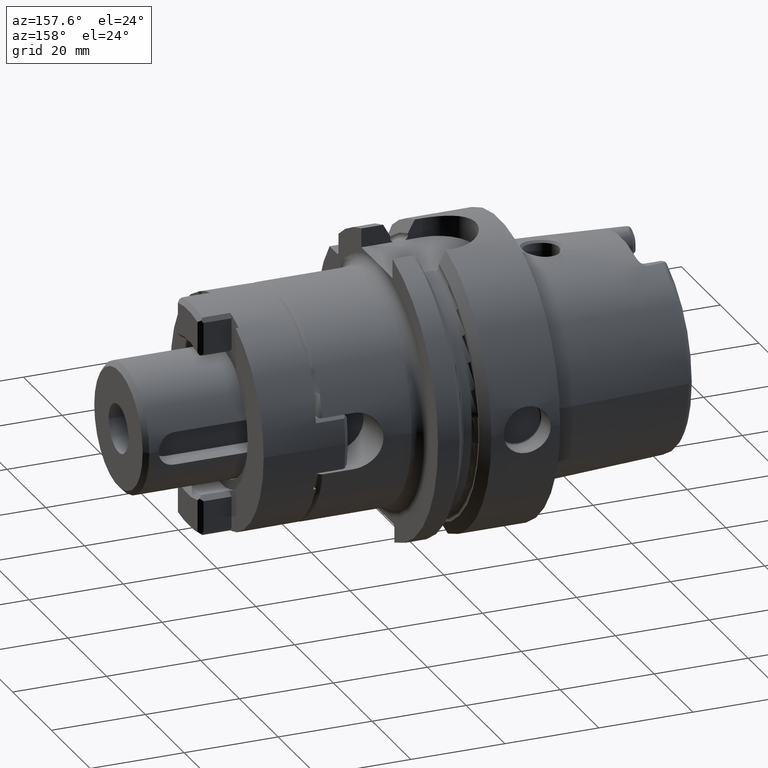
[diagram: clean part render]
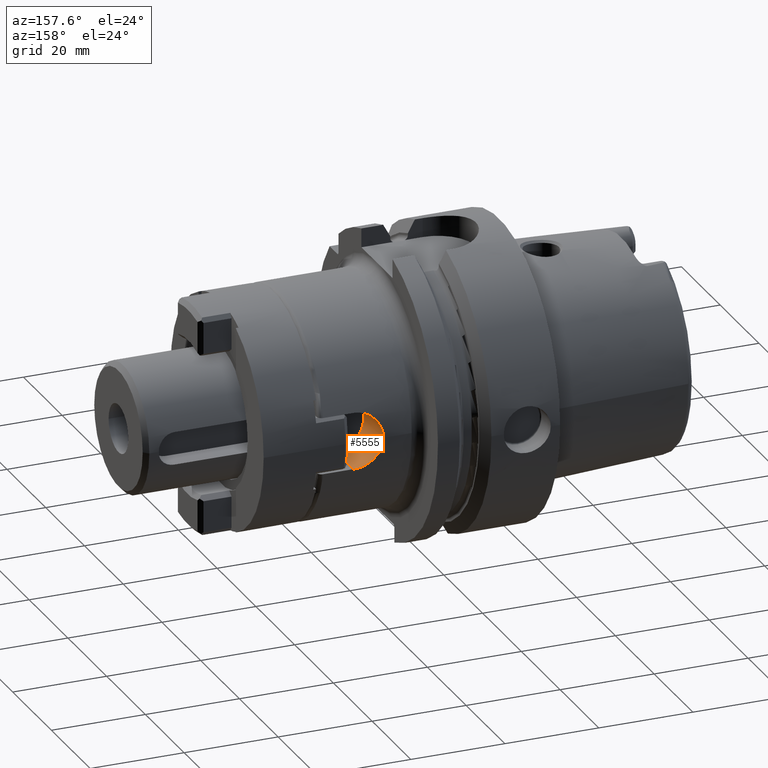
[diagram: same view with one face highlighted and labeled with its STEP entity id]
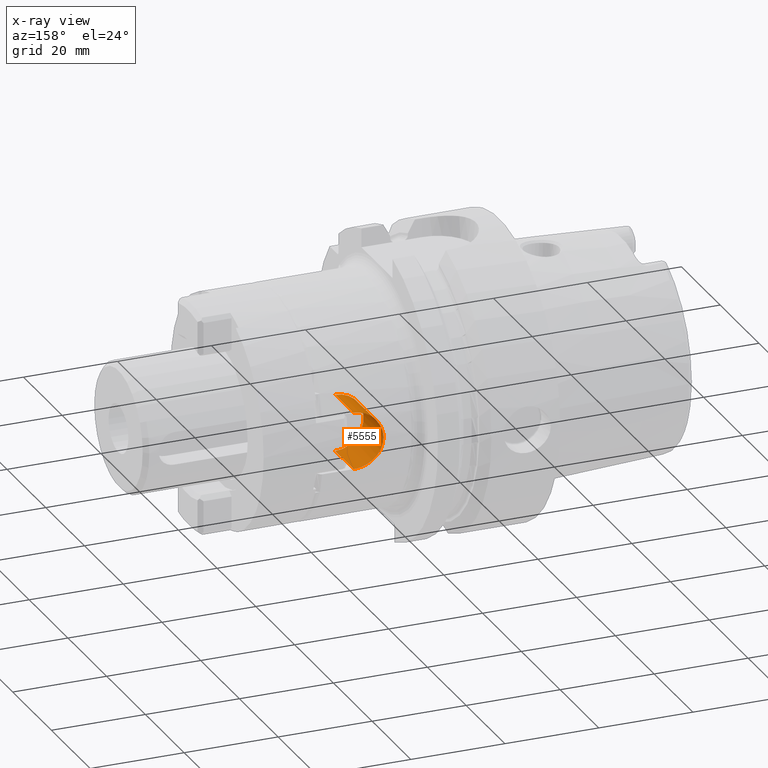
[diagram: x-ray of the same camera — body ghosted, the highlighted face saturated]
A machine part, auxiliary view. The second image highlights one B-rep face of the part: STEP entity #5555.
The next image is the same camera in x-ray: the body ghosted, the highlighted face saturated — about 0% of this face is hidden behind the body in this view.
In plain terms, the highlighted cylindrical surface (edge-blend (fillet) strip) has radius 6.05 mm, axis along (0, 1, 0).
Its self-contained STEP definition (entity closure, byte-faithful):
#1612=CARTESIAN_POINT('',(4.055E1,2.322493272326E1,6.05E0));
#1613=CARTESIAN_POINT('',(4.028821707032E1,2.322493272326E1,6.05E0));
#1614=CARTESIAN_POINT('',(3.976988711407E1,2.323373426577E1,6.016363133370E0));
#1615=CARTESIAN_POINT('',(3.900160870212E1,2.327240676999E1,5.865888070273E0));
#1616=CARTESIAN_POINT('',(3.826201763306E1,2.333367698096E1,5.618683500776E0));
#1617=CARTESIAN_POINT('',(3.756085343739E1,2.341328209082E1,5.279141225444E0));
#1618=CARTESIAN_POINT('',(3.690732937494E1,2.350612446973E1,4.851721573757E0));
#1619=CARTESIAN_POINT('',(3.630553766015E1,2.360737990316E1,4.335738043097E0));
#1620=CARTESIAN_POINT('',(3.577373982194E1,2.370935739182E1,3.741662876004E0));
#1621=CARTESIAN_POINT('',(3.532643392008E1,2.380402279056E1,3.086664036689E0));
#1622=CARTESIAN_POINT('',(3.496407843177E1,2.388657972324E1,2.370407350562E0));
#1623=CARTESIAN_POINT('',(3.469551777483E1,2.395116682984E1,1.597780745449E0));
#1624=CARTESIAN_POINT('',(3.453438456689E1,2.399129536272E1,7.949861845706E-1));
#1625=CARTESIAN_POINT('',(3.45E1,2.4E1,2.653636233119E-1));
#1626=CARTESIAN_POINT('',(3.45E1,2.4E1,0.E0));
#1720=DIRECTION('',(0.E0,-1.E0,0.E0));
#1721=VECTOR('',#1720,9.474932723261E0);
#1722=CARTESIAN_POINT('',(4.055E1,2.322493272326E1,6.05E0));
#1723=LINE('',#1722,#1721);
#1940=CARTESIAN_POINT('',(4.055E1,1.375E1,0.E0));
#1941=DIRECTION('',(0.E0,1.E0,0.E0));
#1942=DIRECTION('',(0.E0,0.E0,-1.E0));
#1943=AXIS2_PLACEMENT_3D('',#1940,#1941,#1942);
#1949=DIRECTION('',(0.E0,-1.E0,0.E0));
#1950=VECTOR('',#1949,9.474932723261E0);
#1951=CARTESIAN_POINT('',(4.055E1,2.322493272326E1,-6.05E0));
#1952=LINE('',#1951,#1950);
#1982=CARTESIAN_POINT('',(3.45E1,2.4E1,0.E0));
#1983=CARTESIAN_POINT('',(3.45E1,2.4E1,-2.656647816382E-1));
#1984=CARTESIAN_POINT('',(3.453446407895E1,2.399127531383E1,
-7.957399738397E-1));
#1985=CARTESIAN_POINT('',(3.469578313677E1,2.395110107344E1,-1.598783099098E0));
#1986=CARTESIAN_POINT('',(3.496444521455E1,2.388649532604E1,-2.371167492933E0));
#1987=CARTESIAN_POINT('',(3.532631423271E1,2.380404999501E1,-3.086425570962E0));
#1988=CARTESIAN_POINT('',(3.577376820577E1,2.370935126452E1,-3.741715063611E0));
#1989=CARTESIAN_POINT('',(3.630537492285E1,2.360741113228E1,-4.335552218887E0));
#1990=CARTESIAN_POINT('',(3.690684609418E1,2.350620396162E1,-4.851329795705E0));
#1991=CARTESIAN_POINT('',(3.755985518620E1,2.341341124860E1,-5.278569272317E0));
#1992=CARTESIAN_POINT('',(3.826120262611E1,2.333375463128E1,-5.618366124410E0));
#1993=CARTESIAN_POINT('',(3.900091521029E1,2.327245122072E1,-5.865712816317E0));
#1994=CARTESIAN_POINT('',(3.976947570213E1,2.323374416390E1,-6.016325677779E0));
#1995=CARTESIAN_POINT('',(4.028806595422E1,2.322493272326E1,-6.05E0));
#1996=CARTESIAN_POINT('',(4.055E1,2.322493272326E1,-6.05E0));
#3447=CARTESIAN_POINT('',(4.055E1,1.375E1,-6.05E0));
#3448=CARTESIAN_POINT('',(4.055E1,1.375E1,6.05E0));
#3449=VERTEX_POINT('',#3447);
#3450=VERTEX_POINT('',#3448);
#3459=VERTEX_POINT('',#1612);
#3460=VERTEX_POINT('',#1626);
#3463=VERTEX_POINT('',#1996);
#5541=CARTESIAN_POINT('',(4.055E1,2.4E1,0.E0));
#5542=DIRECTION('',(0.E0,1.E0,0.E0));
#5543=DIRECTION('',(1.E0,0.E0,0.E0));
#5544=AXIS2_PLACEMENT_3D('',#5541,#5542,#5543);
#5545=CYLINDRICAL_SURFACE('',#5544,6.05E0);
#5546=ORIENTED_EDGE('',*,*,#5175,.T.);
#5548=ORIENTED_EDGE('',*,*,#5547,.T.);
#5550=ORIENTED_EDGE('',*,*,#5549,.T.);
#5551=ORIENTED_EDGE('',*,*,#5534,.T.);
#5552=ORIENTED_EDGE('',*,*,#5287,.F.);
#5553=EDGE_LOOP('',(#5546,#5548,#5550,#5551,#5552));
#5554=FACE_OUTER_BOUND('',#5553,.F.);
#5555=ADVANCED_FACE('',(#5554),#5545,.F.);
#1627=B_SPLINE_CURVE_WITH_KNOTS('',3,(#1612,#1613,#1614,#1615,#1616,#1617,#1618,
#1619,#1620,#1621,#1622,#1623,#1624,#1625,#1626),.UNSPECIFIED.,.F.,.F.,(4,1,1,1,
1,1,1,1,1,1,1,1,4),(0.E0,8.333333333333E-2,1.666666666667E-1,2.5E-1,
3.333333333333E-1,4.166666666667E-1,5.E-1,5.833333333333E-1,6.666666666667E-1,
7.5E-1,8.333333333333E-1,9.166666666667E-1,1.E0),.UNSPECIFIED.);
#1944=CIRCLE('',#1943,6.05E0);
#1997=B_SPLINE_CURVE_WITH_KNOTS('',3,(#1982,#1983,#1984,#1985,#1986,#1987,#1988,
#1989,#1990,#1991,#1992,#1993,#1994,#1995,#1996),.UNSPECIFIED.,.F.,.F.,(4,1,1,1,
1,1,1,1,1,1,1,1,4),(0.E0,8.333333333333E-2,1.666666666667E-1,2.5E-1,
3.333333333333E-1,4.166666666667E-1,5.E-1,5.833333333333E-1,6.666666666667E-1,
7.5E-1,8.333333333333E-1,9.166666666667E-1,1.E0),.UNSPECIFIED.);
#5175=EDGE_CURVE('',#3459,#3460,#1627,.T.);
#5287=EDGE_CURVE('',#3459,#3450,#1723,.T.);
#5534=EDGE_CURVE('',#3449,#3450,#1944,.T.);
#5547=EDGE_CURVE('',#3460,#3463,#1997,.T.);
#5549=EDGE_CURVE('',#3463,#3449,#1952,.T.);